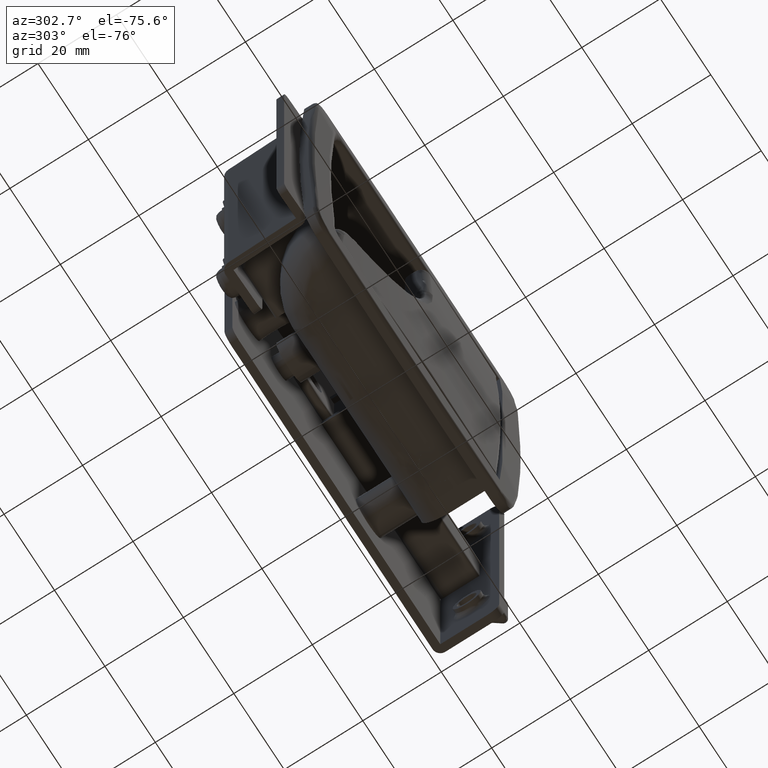
[diagram: clean part render]
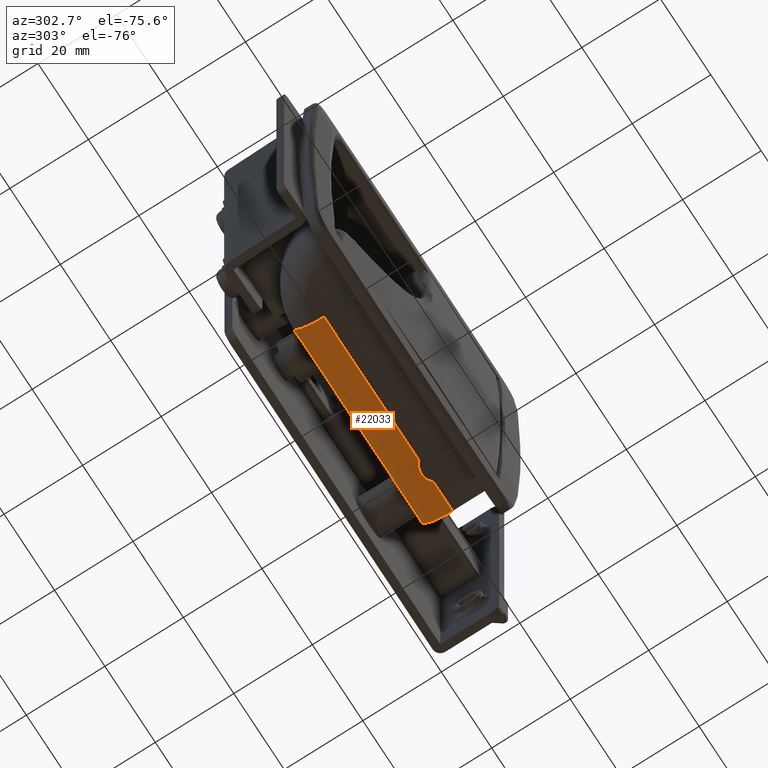
[diagram: same view with one face highlighted and labeled with its STEP entity id]
A machine part, auxiliary view. The second image highlights one B-rep face of the part: STEP entity #22033.
In plain terms, the highlighted face is a freeform B-spline surface patch.
Its self-contained STEP definition (entity closure, byte-faithful):
#16996=CARTESIAN_POINT('',(-19.643428628582850,-20.199999999999999,45.500000000000000));
#16997=VERTEX_POINT('',#16996);
#17005=CARTESIAN_POINT('',(-25.356571371417349,-20.199999999999999,45.500000000000000));
#17006=VERTEX_POINT('',#17005);
#17007=CARTESIAN_POINT('',(-19.643428628582850,-20.199999999999999,45.500000000000000));
#17008=CARTESIAN_POINT('',(-19.830814390283908,-20.008828284897699,45.499999999999993));
#17009=CARTESIAN_POINT('',(-20.033894688085230,-19.839636143751530,45.493259693221269));
#17010=CARTESIAN_POINT('',(-20.361161733533269,-19.617284426938671,45.479095075191999));
#17011=CARTESIAN_POINT('',(-20.474054520688870,-19.548448060693879,45.473677747033129));
#17012=CARTESIAN_POINT('',(-20.649249997539009,-19.453291540440929,45.465139086181047));
#17013=CARTESIAN_POINT('',(-20.708782065257541,-19.422851888547381,45.462215951284080));
#17014=CARTESIAN_POINT('',(-20.829061848858309,-19.365111281473499,45.456368698702583));
#17015=CARTESIAN_POINT('',(-20.889686672564061,-19.337858102543649,45.453450724249770));
#17016=CARTESIAN_POINT('',(-21.195195703272098,-19.209516867046201,45.439119368924842));
#17017=CARTESIAN_POINT('',(-21.447166699471730,-19.131966023638029,45.428563377984929));
#17018=CARTESIAN_POINT('',(-21.771652333686710,-19.066312960206670,45.419275822898292));
#17019=CARTESIAN_POINT('',(-21.837029794315612,-19.054761364080989,45.417608821593952));
#17020=CARTESIAN_POINT('',(-21.968764506515381,-19.034873742434488,45.414706677376962));
#17021=CARTESIAN_POINT('',(-22.035283364330830,-19.026527881308159,45.413470050115983));
#17022=CARTESIAN_POINT('',(-22.234239290986672,-19.006612945944109,45.410499828009080));
#17023=CARTESIAN_POINT('',(-22.366566978525238,-19.000046670032241,45.409495053927522));
#17024=CARTESIAN_POINT('',(-22.762646640796252,-18.999907401741979,45.409473924631470));
#17025=CARTESIAN_POINT('',(-23.025503469829111,-19.025701023618190,45.413522260610243));
#17026=CARTESIAN_POINT('',(-23.352537727428398,-19.091339127787410,45.422818113611399));
#17027=CARTESIAN_POINT('',(-23.417836208687110,-19.106158486365260,45.424883755986492));
#17028=CARTESIAN_POINT('',(-23.546803912887949,-19.138830927394540,45.429324813765362));
#17029=CARTESIAN_POINT('',(-23.610660333793899,-19.156718860763551,45.431705217745481));
#17030=CARTESIAN_POINT('',(-23.800382104108369,-19.214962146502341,45.439221196941567));
#17031=CARTESIAN_POINT('',(-23.924404365475070,-19.259885594919488,45.444734998582923));
#17032=CARTESIAN_POINT('',(-24.167605903294518,-19.361803453526399,45.456133221724507));
#17033=CARTESIAN_POINT('',(-24.286785281035890,-19.418797482866669,45.462018818846097));
#17034=CARTESIAN_POINT('',(-24.520232995064340,-19.545109009693370,45.473401961223963));
#17035=CARTESIAN_POINT('',(-24.634911894743681,-19.614758936963121,45.478915545377973));
#17036=CARTESIAN_POINT('',(-24.965297322090461,-19.838808369230019,45.493243530283387));
#17037=CARTESIAN_POINT('',(-25.169211495551071,-20.008854693731450,45.499999999999979));
#17038=CARTESIAN_POINT('',(-25.356571371417349,-20.199999999999999,45.500000000000000));
#17039=B_SPLINE_CURVE_WITH_KNOTS('',3,(#17007,#17008,#17009,#17010,#17011,#17012,#17013,#17014,#17015,#17016,#17017,#17018,#17019,#17020,#17021,#17022,#17023,#17024,#17025,#17026,#17027,#17028,#17029,#17030,#17031,#17032,#17033,#17034,#17035,#17036,#17037,#17038),.UNSPECIFIED.,.F.,.U.,(4,2,2,2,2,2,2,2,2,2,2,2,2,2,2,4),(0.0,0.125000000000000,0.187499999999999,0.218749999999998,0.249999999999998,0.374999999999992,0.406249999999992,0.437499999999992,0.499999999999992,0.624999999999993,0.656249999999993,0.687499999999993,0.749999999999995,0.812499999999996,0.874999999999998,1.0),.UNSPECIFIED.);
#17040=EDGE_CURVE('',#16997,#17006,#17039,.T.);
#18921=CARTESIAN_POINT('',(-33.0,-12.199999999999999,37.500000000000000));
#18922=VERTEX_POINT('',#18921);
#18928=CARTESIAN_POINT('',(18.002176511299400,-12.199999999999999,37.500000000000000));
#18929=VERTEX_POINT('',#18928);
#18930=CARTESIAN_POINT('',(-33.0,-12.199999999999999,37.500000000000000));
#18931=CARTESIAN_POINT('',(18.002176511299400,-12.199999999999999,37.500000000000000));
#18932=QUASI_UNIFORM_CURVE('',1,(#18930,#18931),.UNSPECIFIED.,.F.,.U.);
#18933=EDGE_CURVE('',#18922,#18929,#18932,.T.);
#21973=CARTESIAN_POINT('',(19.277230924081891,-12.200304615486630,37.430187716013023));
#21974=CARTESIAN_POINT('',(-34.306930773102039,-12.200304615486630,37.430187716013023));
#21975=CARTESIAN_POINT('',(19.277230924081895,-12.125440106563632,46.008810736094020));
#21976=CARTESIAN_POINT('',(-34.306930773102032,-12.125440106563632,46.008810736094020));
#21977=CARTESIAN_POINT('',(19.277230924081891,-20.688388316278861,45.485078387374926));
#21978=CARTESIAN_POINT('',(-34.306930773102039,-20.688388316278861,45.485078387374926));
#21986=(BOUNDED_SURFACE()B_SPLINE_SURFACE(1,2,((#21973,#21975,#21977),(#21974,#21976,#21978)),.UNSPECIFIED.,.F.,.F.,.U.)B_SPLINE_SURFACE_WITH_KNOTS((2,2),(3,3),(0.0,53.584161697183930),(0.0,13.913995998749870),.UNSPECIFIED.)GEOMETRIC_REPRESENTATION_ITEM()RATIONAL_B_SPLINE_SURFACE(((1.0,0.681998360062499,1.0),(1.0,0.681998360062499,1.0)))REPRESENTATION_ITEM('')SURFACE());
#21987=ORIENTED_EDGE('',*,*,#17040,.F.);
#21988=CARTESIAN_POINT('',(18.002176511299400,-20.199999999999999,45.500000000000000));
#21989=VERTEX_POINT('',#21988);
#21990=CARTESIAN_POINT('',(18.002176511299400,-20.199999999999999,45.500000000000000));
#21991=CARTESIAN_POINT('',(-19.643428628582850,-20.199999999999999,45.500000000000000));
#21992=QUASI_UNIFORM_CURVE('',1,(#21990,#21991),.UNSPECIFIED.,.F.,.U.);
#21993=EDGE_CURVE('',#21989,#16997,#21992,.T.);
#21994=ORIENTED_EDGE('',*,*,#21993,.F.);
#21995=CARTESIAN_POINT('',(18.002176511299400,-20.199999999999999,45.500000000000000));
#21996=CARTESIAN_POINT('',(18.002176511299400,-19.480037269864631,45.500236413269931));
#21997=CARTESIAN_POINT('',(18.002176511299432,-18.203867763993880,45.326531662162587));
#21998=CARTESIAN_POINT('',(18.002176511299378,-16.703270052257668,44.736994635877601));
#21999=CARTESIAN_POINT('',(18.002176511299449,-15.494017427944890,44.012195764929579));
#22000=CARTESIAN_POINT('',(18.002176511299279,-14.462412472536590,43.144212689959957));
#22001=CARTESIAN_POINT('',(18.002176511299510,-13.510567339899030,41.969758738749469));
#22002=CARTESIAN_POINT('',(18.002176511299350,-12.883820190218060,40.814225000285433));
#22003=CARTESIAN_POINT('',(18.002176511299439,-12.353598818367370,39.332453077627527));
#22004=CARTESIAN_POINT('',(18.002176511299371,-12.199665676499601,38.252718864706047));
#22005=CARTESIAN_POINT('',(18.002176511299400,-12.199999999999999,37.500000000000000));
#22006=B_SPLINE_CURVE_WITH_KNOTS('',3,(#21995,#21996,#21997,#21998,#21999,#22000,#22001,#22002,#22003,#22004,#22005),.UNSPECIFIED.,.F.,.U.,(4,1,1,1,1,1,1,1,4),(0.000000099680326,2.159852830738902,3.828844419408121,4.810598232873617,6.381370979806354,7.854007486229301,9.326660884056139,10.308418457258551,12.566449463004281),.UNSPECIFIED.);
#22007=EDGE_CURVE('',#21989,#18929,#22006,.T.);
#22008=ORIENTED_EDGE('',*,*,#22007,.T.);
#22009=ORIENTED_EDGE('',*,*,#18933,.F.);
#22010=CARTESIAN_POINT('',(-33.0,-20.199999999999999,45.500000000000000));
#22011=VERTEX_POINT('',#22010);
#22012=CARTESIAN_POINT('',(-33.0,-20.199999999999999,45.500000000000000));
#22013=CARTESIAN_POINT('',(-33.000000000000021,-19.480037269864599,45.500236413269910));
#22014=CARTESIAN_POINT('',(-33.000000000000021,-18.203867763993902,45.326531662162651));
#22015=CARTESIAN_POINT('',(-32.999999999999943,-16.703270052257668,44.736994635877572));
#22016=CARTESIAN_POINT('',(-33.000000000000107,-15.494017427944890,44.012195764929622));
#22017=CARTESIAN_POINT('',(-32.999999999999737,-14.462412472536590,43.144212689959929));
#22018=CARTESIAN_POINT('',(-33.000000000000213,-13.510567339899030,41.969758738749491));
#22019=CARTESIAN_POINT('',(-32.999999999999893,-12.883820190218071,40.814225000285418));
#22020=CARTESIAN_POINT('',(-33.000000000000071,-12.353598818367370,39.332453077627548));
#22021=CARTESIAN_POINT('',(-32.999999999999972,-12.199665676499601,38.252718864706019));
#22022=CARTESIAN_POINT('',(-33.0,-12.199999999999999,37.500000000000000));
#22023=B_SPLINE_CURVE_WITH_KNOTS('',3,(#22012,#22013,#22014,#22015,#22016,#22017,#22018,#22019,#22020,#22021,#22022),.UNSPECIFIED.,.F.,.U.,(4,1,1,1,1,1,1,1,4),(0.000000099680326,2.159852830738902,3.828844419408121,4.810598232873617,6.381370979806354,7.854007486229301,9.326660884056139,10.308418457258551,12.566449463004281),.UNSPECIFIED.);
#22024=EDGE_CURVE('',#22011,#18922,#22023,.T.);
#22025=ORIENTED_EDGE('',*,*,#22024,.F.);
#22026=CARTESIAN_POINT('',(-25.356571371417349,-20.199999999999999,45.500000000000000));
#22027=CARTESIAN_POINT('',(-33.0,-20.199999999999999,45.500000000000000));
#22028=QUASI_UNIFORM_CURVE('',1,(#22026,#22027),.UNSPECIFIED.,.F.,.U.);
#22029=EDGE_CURVE('',#17006,#22011,#22028,.T.);
#22030=ORIENTED_EDGE('',*,*,#22029,.F.);
#22031=EDGE_LOOP('',(#21987,#21994,#22008,#22009,#22025,#22030));
#22032=FACE_OUTER_BOUND('',#22031,.T.);
#22033=ADVANCED_FACE('',(#22032),#21986,.T.);